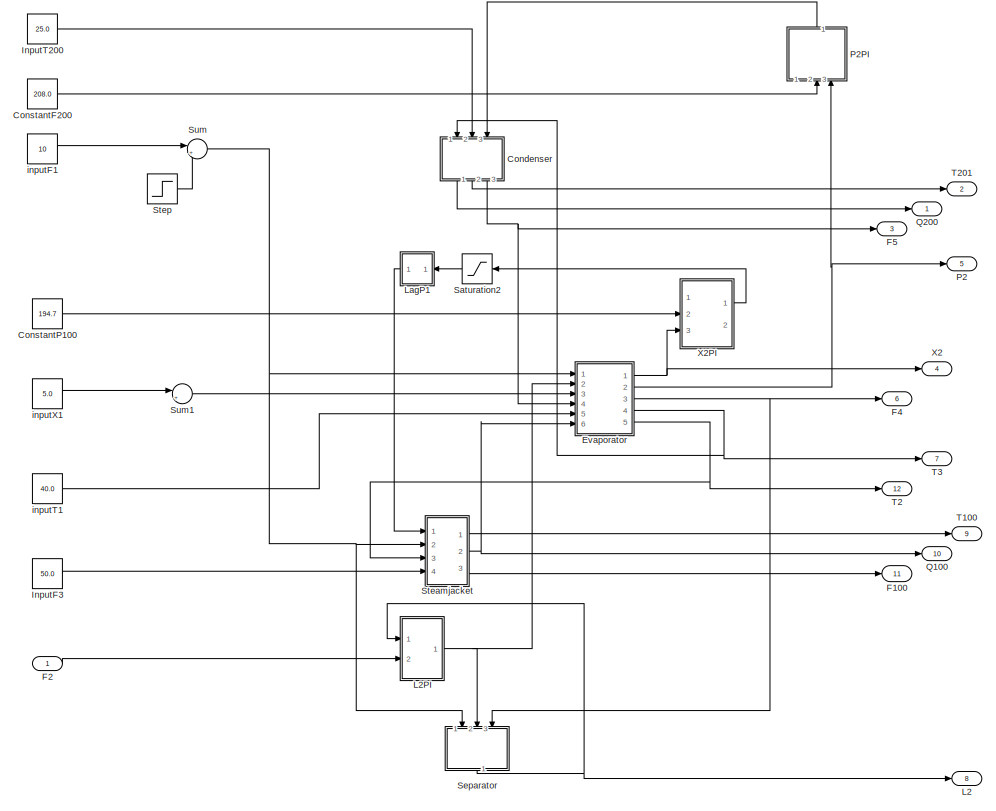
[diagram: root canvas - part 1/2, left side, full height]
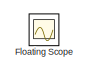
[diagram: root canvas - part 2/2, top right region]
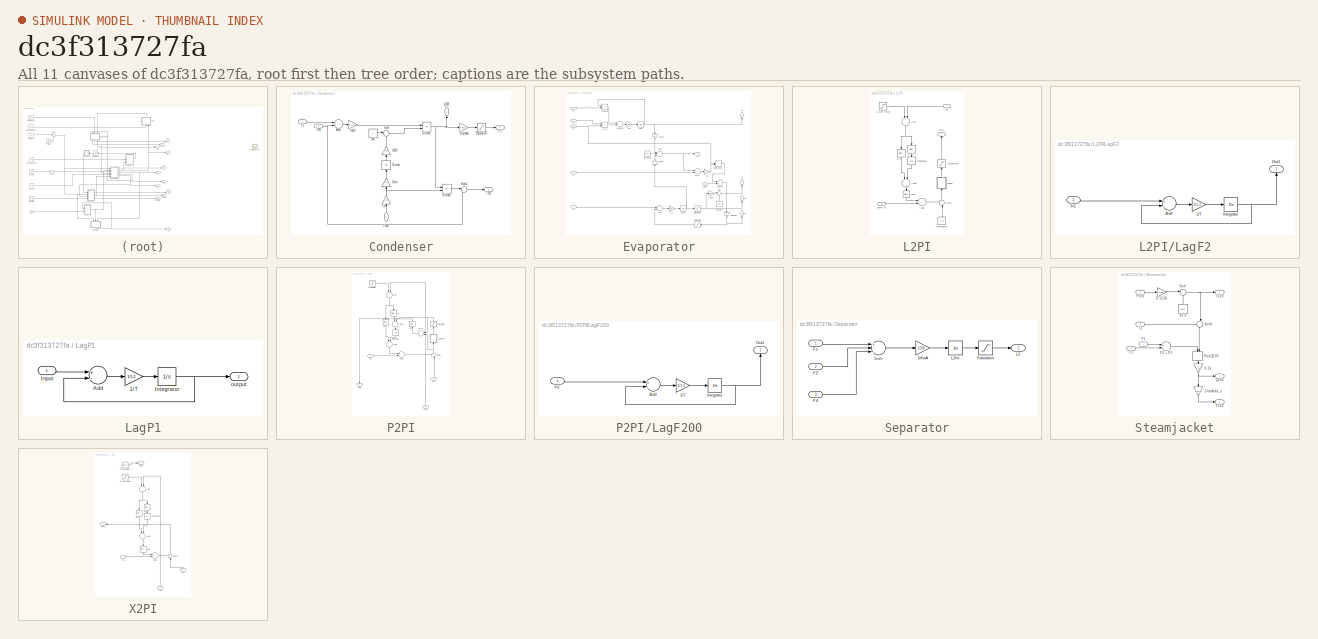
[diagram: thumbnail index - all 11 canvases of the model, root first then tree order]
MODEL slx_dc3f313727fa
KIND model
CONFIG AbsTol = auto
CONFIG EnableMultiTasking = on
CONFIG FixedStep = auto
CONFIG MaxStep = auto
CONFIG MinStep = auto
CONFIG RelTol = 1e-3
CONFIG SampleTimeConstraint = Unconstrained
CONFIG Solver = ode45
CONFIG SolverName = ode45
CONFIG StartTime = 0.0
CONFIG StopTime = 1000
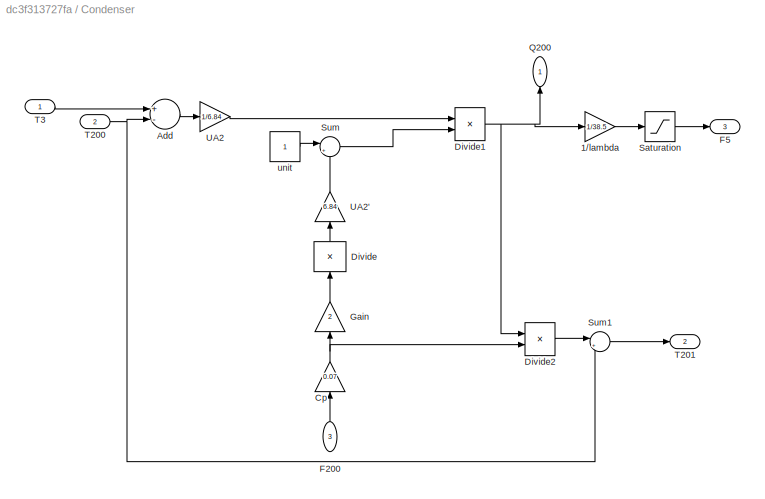
BLOCK [SubSystem] Condenser
  Ports = [3, 3]
  RequestExecContextInheritance = off
  Variant = off
BLOCK [Gain] Condenser/1//lambda
  Gain = 1/38.5
  OutDataTypeStr = Inherit: Inherit via internal rule
  ParamDataTypeStr = Inherit: Inherit via internal rule
  SaturateOnIntegerOverflow = off
BLOCK [Sum] Condenser/Add
  InputSameDT = off
  Inputs = +-
  OutDataTypeStr = Inherit: Inherit via internal rule
  Ports = [2, 1]
  SaturateOnIntegerOverflow = off
BLOCK [Gain] Condenser/Cp
  Gain = 0.07
  OutDataTypeStr = Inherit: Inherit via internal rule
  ParamDataTypeStr = Inherit: Inherit via internal rule
  SaturateOnIntegerOverflow = off
BLOCK [Product] Condenser/Divide
  InputSameDT = off
  Inputs = /
  OutDataTypeStr = Inherit: Inherit via internal rule
  Ports = [1, 1]
  RndMeth = Floor
  SaturateOnIntegerOverflow = off
BLOCK [Product] Condenser/Divide1
  InputSameDT = off
  Inputs = */
  OutDataTypeStr = Inherit: Inherit via internal rule
  Ports = [2, 1]
  RndMeth = Floor
  SaturateOnIntegerOverflow = off
BLOCK [Product] Condenser/Divide2
  InputSameDT = off
  Inputs = */
  OutDataTypeStr = Inherit: Inherit via internal rule
  Ports = [2, 1]
  RndMeth = Floor
  SaturateOnIntegerOverflow = off
BLOCK [Inport] Condenser/F200
  IconDisplay = Port number
  Port = 3
BLOCK [Outport] Condenser/F5
  IconDisplay = Port number
  Port = 3
BLOCK [Gain] Condenser/Gain
  Gain = 2
  OutDataTypeStr = Inherit: Inherit via internal rule
  ParamDataTypeStr = Inherit: Inherit via internal rule
  SaturateOnIntegerOverflow = off
BLOCK [Outport] Condenser/Q200
  IconDisplay = Port number
BLOCK [Saturate] Condenser/Saturation
  InputPortMap = u0
  LowerLimit = 0
  Ports = [1, 1]
  UpperLimit = 16
BLOCK [Sum] Condenser/Sum
  IconShape = round
  InputSameDT = off
  Inputs = |++
  OutDataTypeStr = Inherit: Inherit via internal rule
  Ports = [2, 1]
  SaturateOnIntegerOverflow = off
BLOCK [Sum] Condenser/Sum1
  IconShape = round
  InputSameDT = off
  Inputs = |++
  OutDataTypeStr = Inherit: Inherit via internal rule
  Ports = [2, 1]
  SaturateOnIntegerOverflow = off
BLOCK [Inport] Condenser/T200
  IconDisplay = Port number
  Port = 2
BLOCK [Outport] Condenser/T201
  IconDisplay = Port number
  Port = 2
BLOCK [Inport] Condenser/T3
  IconDisplay = Port number
BLOCK [Gain] Condenser/UA2
  Gain = 1/6.84
  OutDataTypeStr = Inherit: Inherit via internal rule
  ParamDataTypeStr = Inherit: Inherit via internal rule
  SaturateOnIntegerOverflow = off
BLOCK [Gain] Condenser/UA2'
  Gain = 6.84
  OutDataTypeStr = Inherit: Inherit via internal rule
  ParamDataTypeStr = Inherit: Inherit via internal rule
  SaturateOnIntegerOverflow = off
BLOCK [Constant] Condenser/unit
BLOCK [Constant] ConstantF200
  Value = 208.0
BLOCK [Constant] ConstantP100
  Value = 194.7
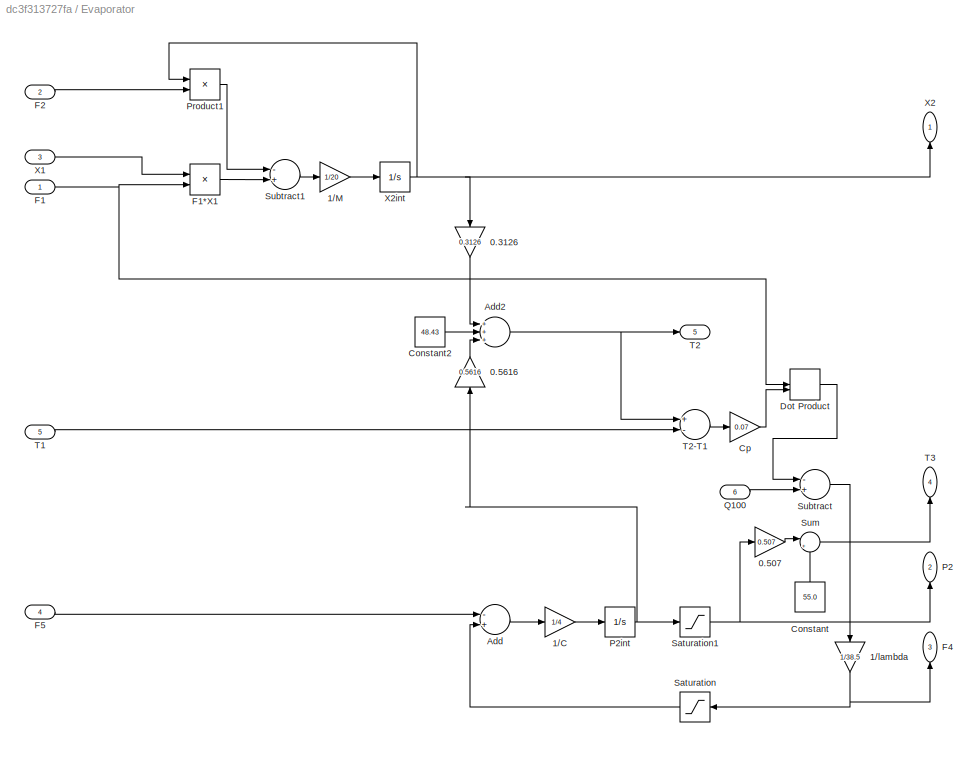
BLOCK [SubSystem] Evaporator
  Ports = [6, 5]
  RequestExecContextInheritance = off
  Variant = off
BLOCK [Gain] Evaporator/0.3126
  Gain = 0.3126
  OutDataTypeStr = Inherit: Inherit via internal rule
  ParamDataTypeStr = Inherit: Inherit via internal rule
  SaturateOnIntegerOverflow = off
BLOCK [Gain] Evaporator/0.507
  Gain = 0.507
  OutDataTypeStr = Inherit: Inherit via internal rule
  ParamDataTypeStr = Inherit: Inherit via internal rule
  SaturateOnIntegerOverflow = off
BLOCK [Gain] Evaporator/0.5616
  Gain = 0.5616
  OutDataTypeStr = Inherit: Inherit via internal rule
  ParamDataTypeStr = Inherit: Inherit via internal rule
  SaturateOnIntegerOverflow = off
BLOCK [Gain] Evaporator/1//C
  Gain = 1/4
  OutDataTypeStr = Inherit: Inherit via internal rule
  ParamDataTypeStr = Inherit: Inherit via internal rule
  SaturateOnIntegerOverflow = off
BLOCK [Gain] Evaporator/1//M
  Gain = 1/20
  OutDataTypeStr = Inherit: Inherit via internal rule
  ParamDataTypeStr = Inherit: Inherit via internal rule
  SaturateOnIntegerOverflow = off
BLOCK [Gain] Evaporator/1//lambda
  Gain = 1/38.5
  OutDataTypeStr = Inherit: Inherit via internal rule
  ParamDataTypeStr = Inherit: Inherit via internal rule
  SaturateOnIntegerOverflow = off
BLOCK [Sum] Evaporator/Add
  InputSameDT = off
  Inputs = -+
  OutDataTypeStr = Inherit: Inherit via internal rule
  Ports = [2, 1]
  SaturateOnIntegerOverflow = off
BLOCK [Sum] Evaporator/Add2
  InputSameDT = off
  Inputs = +++
  OutDataTypeStr = Inherit: Inherit via internal rule
  Ports = [3, 1]
  SaturateOnIntegerOverflow = off
BLOCK [Constant] Evaporator/Constant
  Value = 55.0
BLOCK [Constant] Evaporator/Constant2
  Value = 48.43
BLOCK [Gain] Evaporator/Cp
  Gain = 0.07
  OutDataTypeStr = Inherit: Inherit via internal rule
  ParamDataTypeStr = Inherit: Inherit via internal rule
  SaturateOnIntegerOverflow = off
BLOCK [DotProduct] Evaporator/Dot Product
  OutDataTypeStr = Inherit: Inherit via internal rule
BLOCK [Inport] Evaporator/F1 
  IconDisplay = Port number
BLOCK [Product] Evaporator/F1*X1
  InputSameDT = off
  OutDataTypeStr = Inherit: Inherit via internal rule
  Ports = [2, 1]
  RndMeth = Floor
  SaturateOnIntegerOverflow = off
BLOCK [Inport] Evaporator/F2 
  IconDisplay = Port number
  Port = 2
BLOCK [Outport] Evaporator/F4
  IconDisplay = Port number
  Port = 3
BLOCK [Inport] Evaporator/F5
  IconDisplay = Port number
  Port = 4
BLOCK [Outport] Evaporator/P2
  IconDisplay = Port number
  Port = 2
BLOCK [Integrator] Evaporator/P2int
  InitialCondition = 50.5
  Ports = [1, 1]
BLOCK [Product] Evaporator/Product1
  InputSameDT = off
  OutDataTypeStr = Inherit: Inherit via internal rule
  Ports = [2, 1]
  RndMeth = Floor
  SaturateOnIntegerOverflow = off
BLOCK [Inport] Evaporator/Q100
  IconDisplay = Port number
  Port = 6
BLOCK [Saturate] Evaporator/Saturation
  InputPortMap = u0
  LowerLimit = 0
  Ports = [1, 1]
  UpperLimit = 16
BLOCK [Saturate] Evaporator/Saturation1
  InputPortMap = u0
  LowerLimit = 0
  Ports = [1, 1]
  UpperLimit = 110.0
BLOCK [Sum] Evaporator/Subtract
  InputSameDT = off
  Inputs = -+
  OutDataTypeStr = Inherit: Inherit via internal rule
  Ports = [2, 1]
  SaturateOnIntegerOverflow = off
BLOCK [Sum] Evaporator/Subtract1
  InputSameDT = off
  Inputs = -+
  OutDataTypeStr = Inherit: Inherit via internal rule
  Ports = [2, 1]
  SaturateOnIntegerOverflow = off
BLOCK [Sum] Evaporator/Sum
  IconShape = round
  InputSameDT = off
  Inputs = |++
  OutDataTypeStr = Inherit: Inherit via internal rule
  Ports = [2, 1]
  SaturateOnIntegerOverflow = off
BLOCK [Inport] Evaporator/T1
  IconDisplay = Port number
  Port = 5
BLOCK [Outport] Evaporator/T2
  IconDisplay = Port number
  Port = 5
BLOCK [Sum] Evaporator/T2-T1
  InputSameDT = off
  Inputs = +-
  OutDataTypeStr = Inherit: Inherit via internal rule
  Ports = [2, 1]
  SaturateOnIntegerOverflow = off
BLOCK [Outport] Evaporator/T3
  IconDisplay = Port number
  Port = 4
BLOCK [Inport] Evaporator/X1
  IconDisplay = Port number
  Port = 3
BLOCK [Outport] Evaporator/X2
  IconDisplay = Port number
BLOCK [Integrator] Evaporator/X2int
  InitialCondition = 25.0
  Ports = [1, 1]
BLOCK [Outport] F100
  IconDisplay = Port number
  Port = 11
BLOCK [Inport] F2
  IconDisplay = Port number
BLOCK [Outport] F4
  IconDisplay = Port number
  Port = 6
BLOCK [Outport] F5
  IconDisplay = Port number
  Port = 3
BLOCK [Scope] Floating Scope
  Floating = on
  NumInputPorts = 1
  Ports = []
  ScopeSpecificationString = Simulink.scopes.TimeScopeBlockCfg('CurrentConfiguration', extmgr.ConfigurationSet(extmgr.Configuration('Core','General UI',true),extmgr.Configuration('Core','Source UI',true),extmgr.Configuration('Sources','WiredSimulink',true),extmgr.Configuration('Visuals','Time Domain',true),extmgr.Configuration('Tools','Plot Navigation',true,'PreviousZoomMode','ZoomY'),extmgr.Configuration('Tools','Measurement...<+127ch>
BLOCK [Constant] InputF3
  Value = 50.0
BLOCK [Constant] InputT200 
  Value = 25.0
BLOCK [Outport] L2
  IconDisplay = Port number
  Port = 8
BLOCK [SubSystem] L2PI
  Ports = [2, 1]
  RequestExecContextInheritance = off
  Variant = off
BLOCK [Sum] L2PI/Add
  InputSameDT = off
  Inputs = +-
  OutDataTypeStr = Inherit: Inherit via internal rule
  Ports = [2, 1]
  SaturateOnIntegerOverflow = off
BLOCK [Sum] L2PI/Add1
  InputSameDT = off
  OutDataTypeStr = Inherit: Inherit via internal rule
  Ports = [2, 1]
  SaturateOnIntegerOverflow = off
BLOCK [Sum] L2PI/Add2
  InputSameDT = off
  OutDataTypeStr = Inherit: Inherit via internal rule
  Ports = [2, 1]
  SaturateOnIntegerOverflow = off
BLOCK [Constant] L2PI/ConstantF2
  Value = 2.0
BLOCK [Inport] L2PI/In1
  IconDisplay = Port number
BLOCK [Inport] L2PI/Inport F2
  IconDisplay = Port number
  Port = 2
BLOCK [Integrator] L2PI/Integrator
  Ports = [1, 1]
BLOCK [Reference] L2PI/Ki  REF=simulink/Math
Operations/Slider
Gain
  Ports = [1, 1]
  SourceBlock = simulink/Math\nOperations/Slider\nGain
  SourceProductBaseCode = SL
  SourceProductName = Simulink
  SourceType = Slider Gain
BLOCK [Reference] L2PI/Kp  REF=simulink/Math
Operations/Slider
Gain
  Ports = [1, 1]
  SourceBlock = simulink/Math\nOperations/Slider\nGain
  SourceProductBaseCode = SL
  SourceProductName = Simulink
  SourceType = Slider Gain
BLOCK [Step] L2PI/L2 Set Point
  After = 1.
  Before = 1
  SampleTime = 0
BLOCK [SubSystem] L2PI/LagF2
  Ports = [1, 1]
  RequestExecContextInheritance = off
  Variant = off
BLOCK [Gain] L2PI/LagF2/1//T
  Gain = 1/1.2
  OutDataTypeStr = Inherit: Inherit via internal rule
  ParamDataTypeStr = Inherit: Inherit via internal rule
  SaturateOnIntegerOverflow = off
BLOCK [Sum] L2PI/LagF2/Add
  InputSameDT = off
  Inputs = +-
  OutDataTypeStr = Inherit: Inherit via internal rule
  Ports = [2, 1]
  SaturateOnIntegerOverflow = off
BLOCK [Inport] L2PI/LagF2/In1
  IconDisplay = Port number
BLOCK [Integrator] L2PI/LagF2/Integrator
  InitialCondition = 2.0
  Ports = [1, 1]
BLOCK [Outport] L2PI/LagF2/Out1
  IconDisplay = Port number
BLOCK [Outport] L2PI/Out1
  IconDisplay = Port number
BLOCK [Saturate] L2PI/Saturation
  InputPortMap = u0
  LowerLimit = 0
  Ports = [1, 1]
  UpperLimit = 4.0
BLOCK [Sum] L2PI/Sum1
  IconShape = round
  InputSameDT = off
  Inputs = ++|
  OutDataTypeStr = Inherit: Inherit via internal rule
  Ports = [2, 1]
  SaturateOnIntegerOverflow = off
BLOCK [Reference] L2PI/gain  REF=simulink/Math
Operations/Slider
Gain
  Ports = [1, 1]
  SourceBlock = simulink/Math\nOperations/Slider\nGain
  SourceProductBaseCode = SL
  SourceProductName = Simulink
  SourceType = Slider Gain
BLOCK [SubSystem] LagP1
  Ports = [1, 1]
  RequestExecContextInheritance = off
  Variant = off
BLOCK [Gain] LagP1/1//T
  Gain = 1/1.2
  OutDataTypeStr = Inherit: Inherit via internal rule
  ParamDataTypeStr = Inherit: Inherit via internal rule
  SaturateOnIntegerOverflow = off
BLOCK [Sum] LagP1/Add
  InputSameDT = off
  Inputs = +-
  OutDataTypeStr = Inherit: Inherit via internal rule
  Ports = [2, 1]
  SaturateOnIntegerOverflow = off
BLOCK [Inport] LagP1/Input
  IconDisplay = Port number
BLOCK [Integrator] LagP1/Integrator
  InitialCondition = 194.7
  Ports = [1, 1]
BLOCK [Outport] LagP1/output
  IconDisplay = Port number
BLOCK [Outport] P2
  IconDisplay = Port number
  Port = 5
BLOCK [SubSystem] P2PI
  Ports = [3, 1]
  RequestExecContextInheritance = off
  Variant = off
BLOCK [Sum] P2PI/Add
  InputSameDT = off
  Inputs = +-
  OutDataTypeStr = Inherit: Inherit via internal rule
  Ports = [2, 1]
  SaturateOnIntegerOverflow = off
BLOCK [Sum] P2PI/Add1
  InputSameDT = off
  OutDataTypeStr = Inherit: Inherit via internal rule
  Ports = [2, 1]
  SaturateOnIntegerOverflow = off
BLOCK [Sum] P2PI/Add2
  InputSameDT = off
  OutDataTypeStr = Inherit: Inherit via internal rule
  Ports = [2, 1]
  SaturateOnIntegerOverflow = off
BLOCK [Sum] P2PI/Add3
  InputSameDT = off
  OutDataTypeStr = Inherit: Inherit via internal rule
  Ports = [2, 1]
  SaturateOnIntegerOverflow = off
BLOCK [Sum] P2PI/Error
  InputSameDT = off
  Inputs = +-
  OutDataTypeStr = Inherit: Inherit via internal rule
  Ports = [2, 1]
  SaturateOnIntegerOverflow = off
BLOCK [Inport] P2PI/In1
  IconDisplay = Port number
BLOCK [Inport] P2PI/In2
  IconDisplay = Port number
  Port = 2
BLOCK [Inport] P2PI/In3
  IconDisplay = Port number
  Port = 3
BLOCK [Integrator] P2PI/Integrator
  Ports = [1, 1]
BLOCK [Reference] P2PI/Ki  REF=simulink/Math
Operations/Slider
Gain
  Ports = [1, 1]
  SourceBlock = simulink/Math\nOperations/Slider\nGain
  SourceProductBaseCode = SL
  SourceProductName = Simulink
  SourceType = Slider Gain
BLOCK [Reference] P2PI/Kp  REF=simulink/Math
Operations/Slider
Gain
  Ports = [1, 1]
  SourceBlock = simulink/Math\nOperations/Slider\nGain
  SourceProductBaseCode = SL
  SourceProductName = Simulink
  SourceType = Slider Gain
BLOCK [Reference] P2PI/Kt  REF=simulink/Math
Operations/Slider
Gain
  Ports = [1, 1]
  SourceBlock = simulink/Math\nOperations/Slider\nGain
  SourceProductBaseCode = SL
  SourceProductName = Simulink
  SourceType = Slider Gain
BLOCK [SubSystem] P2PI/LagF200
  Ports = [1, 1]
  RequestExecContextInheritance = off
  Variant = off
BLOCK [Gain] P2PI/LagF200/1//T
  Gain = 1/1.2
  OutDataTypeStr = Inherit: Inherit via internal rule
  ParamDataTypeStr = Inherit: Inherit via internal rule
  SaturateOnIntegerOverflow = off
BLOCK [Sum] P2PI/LagF200/Add
  InputSameDT = off
  Inputs = +-
  OutDataTypeStr = Inherit: Inherit via internal rule
  Ports = [2, 1]
  SaturateOnIntegerOverflow = off
BLOCK [Inport] P2PI/LagF200/In1
  IconDisplay = Port number
BLOCK [Integrator] P2PI/LagF200/Integrator
  InitialCondition = 208.0
  Ports = [1, 1]
BLOCK [Outport] P2PI/LagF200/Out1
  IconDisplay = Port number
BLOCK [Outport] P2PI/Out1
  IconDisplay = Port number
BLOCK [Step] P2PI/P2 Set Point
  After = 50.5
  Before = 50.5
  SampleTime = 0
BLOCK [Saturate] P2PI/Saturation
  InputPortMap = u0
  LowerLimit = 0
  Ports = [1, 1]
  UpperLimit = 416
BLOCK [Sum] P2PI/Sum2
  IconShape = round
  InputSameDT = off
  Inputs = ++|
  OutDataTypeStr = Inherit: Inherit via internal rule
  Ports = [2, 1]
  SaturateOnIntegerOverflow = off
BLOCK [Outport] Q100
  IconDisplay = Port number
  Port = 10
BLOCK [Outport] Q200
  IconDisplay = Port number
BLOCK [Saturate] Saturation2
  InputPortMap = u0
  LowerLimit = 0
  Ports = [1, 1]
  UpperLimit = 194.7*2
BLOCK [SubSystem] Separator
  Ports = [3, 1]
  RequestExecContextInheritance = off
  Variant = off
BLOCK [Gain] Separator/1//rhoA
  Gain = 1/20
  OutDataTypeStr = Inherit: Inherit via internal rule
  ParamDataTypeStr = Inherit: Inherit via internal rule
  SaturateOnIntegerOverflow = off
BLOCK [Inport] Separator/F1
  IconDisplay = Port number
BLOCK [Inport] Separator/F2
  IconDisplay = Port number
  Port = 2
BLOCK [Inport] Separator/F4
  IconDisplay = Port number
  Port = 3
BLOCK [Outport] Separator/L2
  IconDisplay = Port number
BLOCK [Integrator] Separator/L2int
  InitialCondition = 1
  Ports = [1, 1]
BLOCK [Saturate] Separator/Saturation
  InputPortMap = u0
  LowerLimit = 0
  Ports = [1, 1]
  UpperLimit = 2
BLOCK [Sum] Separator/Sum
  InputSameDT = off
  Inputs = +--
  OutDataTypeStr = Inherit: Inherit via internal rule
  Ports = [3, 1]
  SaturateOnIntegerOverflow = off
BLOCK [SubSystem] Steamjacket
  Ports = [4, 3]
  RequestExecContextInheritance = off
  Variant = off
BLOCK [Gain] Steamjacket/0.1538
  Gain = 0.1538
  OutDataTypeStr = Inherit: Inherit via internal rule
  ParamDataTypeStr = Inherit: Inherit via internal rule
  SaturateOnIntegerOverflow = off
BLOCK [Gain] Steamjacket/0.16
  Gain = 0.16
  OutDataTypeStr = Inherit: Inherit via internal rule
  ParamDataTypeStr = Inherit: Inherit via internal rule
  SaturateOnIntegerOverflow = off
BLOCK [Gain] Steamjacket/1//lambda_s
  Gain = 1/36.6
  OutDataTypeStr = Inherit: Inherit via internal rule
  ParamDataTypeStr = Inherit: Inherit via internal rule
  SaturateOnIntegerOverflow = off
BLOCK [Constant] Steamjacket/90.0
  Value = 90.0
BLOCK [Inport] Steamjacket/F1
  IconDisplay = Port number
  Port = 2
BLOCK [Sum] Steamjacket/F1 + F3
  InputSameDT = off
  OutDataTypeStr = Inherit: Inherit via internal rule
  Ports = [2, 1]
  SaturateOnIntegerOverflow = off
BLOCK [Outport] Steamjacket/F100
  IconDisplay = Port number
  Port = 3
BLOCK [Inport] Steamjacket/F3
  IconDisplay = Port number
  Port = 4
BLOCK [Inport] Steamjacket/P100
  IconDisplay = Port number
BLOCK [DotProduct] Steamjacket/ProdQ100
  OutDataTypeStr = Inherit: Inherit via internal rule
BLOCK [Outport] Steamjacket/Q100
  IconDisplay = Port number
  Port = 2
BLOCK [Sum] Steamjacket/Sum
  IconShape = round
  InputSameDT = off
  Inputs = |++
  OutDataTypeStr = Inherit: Inherit via internal rule
  Ports = [2, 1]
  SaturateOnIntegerOverflow = off
BLOCK [Sum] Steamjacket/Sum1
  IconShape = round
  InputSameDT = off
  Inputs = -+|
  OutDataTypeStr = Inherit: Inherit via internal rule
  Ports = [2, 1]
  SaturateOnIntegerOverflow = off
BLOCK [Outport] Steamjacket/T100
  IconDisplay = Port number
BLOCK [Inport] Steamjacket/T2
  IconDisplay = Port number
  Port = 3
BLOCK [Step] Step
  After = 20
  SampleTime = 0
BLOCK [Sum] Sum
  IconShape = round
  InputSameDT = off
  Inputs = |++
  OutDataTypeStr = Inherit: Inherit via internal rule
  Ports = [2, 1]
  SaturateOnIntegerOverflow = off
BLOCK [Sum] Sum1
  IconShape = round
  InputSameDT = off
  Inputs = |++
  OutDataTypeStr = Inherit: Inherit via internal rule
  Ports = [2, 1]
  SaturateOnIntegerOverflow = off
BLOCK [Outport] T100
  IconDisplay = Port number
  Port = 9
BLOCK [Outport] T2
  IconDisplay = Port number
  Port = 12
BLOCK [Outport] T201
  IconDisplay = Port number
  Port = 2
BLOCK [Outport] T3
  IconDisplay = Port number
  Port = 7
BLOCK [Outport] X2
  IconDisplay = Port number
  Port = 4
BLOCK [SubSystem] X2PI
  Ports = [3, 2]
  RequestExecContextInheritance = off
  Variant = off
BLOCK [Sum] X2PI/Add
  InputSameDT = off
  Inputs = +-
  OutDataTypeStr = Inherit: Inherit via internal rule
  Ports = [2, 1]
  SaturateOnIntegerOverflow = off
BLOCK [Sum] X2PI/Add1
  InputSameDT = off
  OutDataTypeStr = Inherit: Inherit via internal rule
  Ports = [2, 1]
  SaturateOnIntegerOverflow = off
BLOCK [Sum] X2PI/Add2
  InputSameDT = off
  OutDataTypeStr = Inherit: Inherit via internal rule
  Ports = [2, 1]
  SaturateOnIntegerOverflow = off
BLOCK [Inport] X2PI/In1
  IconDisplay = Port number
BLOCK [Inport] X2PI/In2
  IconDisplay = Port number
  Port = 2
BLOCK [Inport] X2PI/In3
  IconDisplay = Port number
  Port = 3
BLOCK [Integrator] X2PI/Integrator
  Ports = [1, 1]
BLOCK [Reference] X2PI/Ki  REF=simulink/Math
Operations/Slider
Gain
  Ports = [1, 1]
  SourceBlock = simulink/Math\nOperations/Slider\nGain
  SourceProductBaseCode = SL
  SourceProductName = Simulink
  SourceType = Slider Gain
BLOCK [Reference] X2PI/Kp  REF=simulink/Math
Operations/Slider
Gain
  Ports = [1, 1]
  SourceBlock = simulink/Math\nOperations/Slider\nGain
  SourceProductBaseCode = SL
  SourceProductName = Simulink
  SourceType = Slider Gain
BLOCK [Outport] X2PI/Out1
  IconDisplay = Port number
BLOCK [Outport] X2PI/Out2
  IconDisplay = Port number
  Port = 2
BLOCK [Sum] X2PI/Sum2
  IconShape = round
  InputSameDT = off
  Inputs = ++|
  OutDataTypeStr = Inherit: Inherit via internal rule
  Ports = [2, 1]
  SaturateOnIntegerOverflow = off
BLOCK [Step] X2PI/X2 Set Point
  After = 25.0
  Before = 25.0
  SampleTime = 0
BLOCK [Reference] X2PI/X2 Setpoints  REF=simulink/Sources/Repeating
Sequence
Stair
  Ports = [0, 1]
  SourceBlock = simulink/Sources/Repeating\nSequence\nStair
  SourceProductBaseCode = SL
  SourceProductName = Simulink
  SourceType = Repeating Sequence Stair
BLOCK [Reference] X2PI/gain  REF=simulink/Math
Operations/Slider
Gain
  Ports = [1, 1]
  SourceBlock = simulink/Math\nOperations/Slider\nGain
  SourceProductBaseCode = SL
  SourceProductName = Simulink
  SourceType = Slider Gain
BLOCK [Constant] inputF1
  Value = 10
BLOCK [Constant] inputT1
  Value = 40.0
BLOCK [Constant] inputX1
  Value = 5.0
LINE Condenser/1//lambda:1 -> Condenser/Saturation:1
LINE Condenser/Add:1 -> Condenser/UA2:1
NET Condenser/Cp:1 -> Condenser/Divide2:2, Condenser/Gain:1
NET Condenser/Divide1:1 -> Condenser/1//lambda:1, Condenser/Divide2:1, Condenser/Q200:1
LINE Condenser/Divide2:1 -> Condenser/Sum1:1
LINE Condenser/Divide:1 -> Condenser/UA2':1
LINE Condenser/F200:1 -> Condenser/Cp:1
LINE Condenser/Gain:1 -> Condenser/Divide:1
LINE Condenser/Saturation:1 -> Condenser/F5:1
LINE Condenser/Sum1:1 -> Condenser/T201:1
LINE Condenser/Sum:1 -> Condenser/Divide1:2
NET Condenser/T200:1 -> Condenser/Add:2, Condenser/Sum1:2
LINE Condenser/T3:1 -> Condenser/Add:1
LINE Condenser/UA2':1 -> Condenser/Sum:2
LINE Condenser/UA2:1 -> Condenser/Divide1:1
LINE Condenser/unit:1 -> Condenser/Sum:1
LINE Condenser:1 -> Q200:1
LINE Condenser:2 -> T201:1
NET Condenser:3 -> Evaporator:4, F5:1
LINE ConstantF200:1 -> P2PI:2
LINE ConstantP100:1 -> X2PI:2
LINE Evaporator/0.3126:1 -> Evaporator/Add2:1
LINE Evaporator/0.507:1 -> Evaporator/Sum:1
LINE Evaporator/0.5616:1 -> Evaporator/Add2:3
LINE Evaporator/1//C:1 -> Evaporator/P2int:1
LINE Evaporator/1//M:1 -> Evaporator/X2int:1
NET Evaporator/1//lambda:1 -> Evaporator/F4:1, Evaporator/Saturation:1
NET Evaporator/Add2:1 -> Evaporator/T2-T1:1, Evaporator/T2:1
LINE Evaporator/Add:1 -> Evaporator/1//C:1
LINE Evaporator/Constant2:1 -> Evaporator/Add2:2
LINE Evaporator/Constant:1 -> Evaporator/Sum:2
LINE Evaporator/Cp:1 -> Evaporator/Dot Product:2
LINE Evaporator/Dot Product:1 -> Evaporator/Subtract:1
NET Evaporator/F1 :1 -> Evaporator/Dot Product:1, Evaporator/F1*X1:2
LINE Evaporator/F1*X1:1 -> Evaporator/Subtract1:2
LINE Evaporator/F2 :1 -> Evaporator/Product1:2
LINE Evaporator/F5:1 -> Evaporator/Add:1
NET Evaporator/P2int:1 -> Evaporator/0.5616:1, Evaporator/Saturation1:1
LINE Evaporator/Product1:1 -> Evaporator/Subtract1:1
LINE Evaporator/Q100:1 -> Evaporator/Subtract:2
NET Evaporator/Saturation1:1 -> Evaporator/0.507:1, Evaporator/P2:1
LINE Evaporator/Saturation:1 -> Evaporator/Add:2
LINE Evaporator/Subtract1:1 -> Evaporator/1//M:1
LINE Evaporator/Subtract:1 -> Evaporator/1//lambda:1
LINE Evaporator/Sum:1 -> Evaporator/T3:1
LINE Evaporator/T1:1 -> Evaporator/T2-T1:2
LINE Evaporator/T2-T1:1 -> Evaporator/Cp:1
LINE Evaporator/X1:1 -> Evaporator/F1*X1:1
NET Evaporator/X2int:1 -> Evaporator/0.3126:1, Evaporator/Product1:1, Evaporator/X2:1
NET Evaporator:1 -> X2:1, X2PI:3
NET Evaporator:2 -> P2:1, P2PI:3
NET Evaporator:3 -> F4:1, Separator:3
NET Evaporator:4 -> Condenser:1, T3:1
NET Evaporator:5 -> Steamjacket:3, T2:1
LINE F2:1 -> L2PI:2
LINE InputF3:1 -> Steamjacket:4
LINE InputT200 :1 -> Condenser:2
LINE L2PI/Add1:1 -> L2PI/Sum1:1
LINE L2PI/Add2:1 -> L2PI/gain:1
NET L2PI/Add:1 -> L2PI/Ki:1, L2PI/Kp:1
LINE L2PI/ConstantF2:1 -> L2PI/Sum1:2
LINE L2PI/In1:1 -> L2PI/Add:2
LINE L2PI/Inport F2:1 -> L2PI/Add1:2
LINE L2PI/Integrator:1 -> L2PI/Add2:2
LINE L2PI/Ki:1 -> L2PI/Integrator:1
LINE L2PI/Kp:1 -> L2PI/Add2:1
LINE L2PI/L2 Set Point:1 -> L2PI/Add:1
LINE L2PI/LagF2/1//T:1 -> L2PI/LagF2/Integrator:1
LINE L2PI/LagF2/Add:1 -> L2PI/LagF2/1//T:1
LINE L2PI/LagF2/In1:1 -> L2PI/LagF2/Add:1
NET L2PI/LagF2/Integrator:1 -> L2PI/LagF2/Add:2, L2PI/LagF2/Out1:1
LINE L2PI/LagF2:1 -> L2PI/Saturation:1
LINE L2PI/Saturation:1 -> L2PI/Out1:1
LINE L2PI/Sum1:1 -> L2PI/LagF2:1
LINE L2PI/gain:1 -> L2PI/Add1:1
NET L2PI:1 -> Evaporator:2, Separator:2
LINE LagP1/1//T:1 -> LagP1/Integrator:1
LINE LagP1/Add:1 -> LagP1/1//T:1
LINE LagP1/Input:1 -> LagP1/Add:1
NET LagP1/Integrator:1 -> LagP1/Add:2, LagP1/output:1
LINE LagP1:1 -> Steamjacket:1
LINE P2PI/Add1:1 -> P2PI/Sum2:1
LINE P2PI/Add2:1 -> P2PI/Add1:1
LINE P2PI/Add3:1 -> P2PI/Integrator:1
NET P2PI/Add:1 -> P2PI/Ki:1, P2PI/Kp:1
LINE P2PI/Error:1 -> P2PI/Kt:1
LINE P2PI/In1:1 -> P2PI/Add1:2
LINE P2PI/In2:1 -> P2PI/Sum2:2
LINE P2PI/In3:1 -> P2PI/Add:2
LINE P2PI/Integrator:1 -> P2PI/Add2:2
LINE P2PI/Ki:1 -> P2PI/Add3:1
LINE P2PI/Kp:1 -> P2PI/Add2:1
LINE P2PI/Kt:1 -> P2PI/Add3:2
LINE P2PI/LagF200/1//T:1 -> P2PI/LagF200/Integrator:1
LINE P2PI/LagF200/Add:1 -> P2PI/LagF200/1//T:1
LINE P2PI/LagF200/In1:1 -> P2PI/LagF200/Add:1
NET P2PI/LagF200/Integrator:1 -> P2PI/LagF200/Add:2, P2PI/LagF200/Out1:1
LINE P2PI/LagF200:1 -> P2PI/Saturation:1
LINE P2PI/P2 Set Point:1 -> P2PI/Add:1
NET P2PI/Saturation:1 -> P2PI/Error:1, P2PI/Out1:1
NET P2PI/Sum2:1 -> P2PI/Error:2, P2PI/LagF200:1
LINE P2PI:1 -> Condenser:3
LINE Saturation2:1 -> LagP1:1
LINE Separator/1//rhoA:1 -> Separator/L2int:1
LINE Separator/F1:1 -> Separator/Sum:1
LINE Separator/F2:1 -> Separator/Sum:2
LINE Separator/F4:1 -> Separator/Sum:3
LINE Separator/L2int:1 -> Separator/Saturation:1
LINE Separator/Saturation:1 -> Separator/L2:1
LINE Separator/Sum:1 -> Separator/1//rhoA:1
NET Separator:1 -> L2:1, L2PI:1
LINE Steamjacket/0.1538:1 -> Steamjacket/Sum:1
NET Steamjacket/0.16:1 -> Steamjacket/1//lambda_s:1, Steamjacket/Q100:1
LINE Steamjacket/1//lambda_s:1 -> Steamjacket/F100:1
LINE Steamjacket/90.0:1 -> Steamjacket/Sum:2
LINE Steamjacket/F1 + F3:1 -> Steamjacket/ProdQ100:1
LINE Steamjacket/F1:1 -> Steamjacket/F1 + F3:1
LINE Steamjacket/F3:1 -> Steamjacket/F1 + F3:2
LINE Steamjacket/P100:1 -> Steamjacket/0.1538:1
LINE Steamjacket/ProdQ100:1 -> Steamjacket/0.16:1
LINE Steamjacket/Sum1:1 -> Steamjacket/ProdQ100:2
NET Steamjacket/Sum:1 -> Steamjacket/Sum1:2, Steamjacket/T100:1
LINE Steamjacket/T2:1 -> Steamjacket/Sum1:1
LINE Steamjacket:1 -> T100:1
NET Steamjacket:2 -> Evaporator:6, Q100:1
LINE Steamjacket:3 -> F100:1
LINE Step:1 -> Sum:2
LINE Sum1:1 -> Evaporator:3
NET Sum:1 -> Evaporator:1, Separator:1, Steamjacket:2
LINE X2PI/Add1:1 -> X2PI/Sum2:1
LINE X2PI/Add2:1 -> X2PI/gain:1
NET X2PI/Add:1 -> X2PI/Ki:1, X2PI/Kp:1
LINE X2PI/In1:1 -> X2PI/Add1:2
LINE X2PI/In2:1 -> X2PI/Sum2:2
LINE X2PI/In3:1 -> X2PI/Add:2
LINE X2PI/Integrator:1 -> X2PI/Add2:2
LINE X2PI/Ki:1 -> X2PI/Integrator:1
LINE X2PI/Kp:1 -> X2PI/Add2:1
LINE X2PI/Sum2:1 -> X2PI/Out1:1
LINE X2PI/X2 Set Point:1 -> X2PI/Add:1
LINE X2PI/X2 Setpoints:1 -> X2PI/Out2:1
LINE X2PI/gain:1 -> X2PI/Add1:1
LINE X2PI:1 -> Saturation2:1
LINE inputF1:1 -> Sum:1
LINE inputT1:1 -> Evaporator:5
LINE inputX1:1 -> Sum1:1
note: NET lines group one-source signal fan-out (src -> all destinations, sorted); 1:1 wires keep LINE
